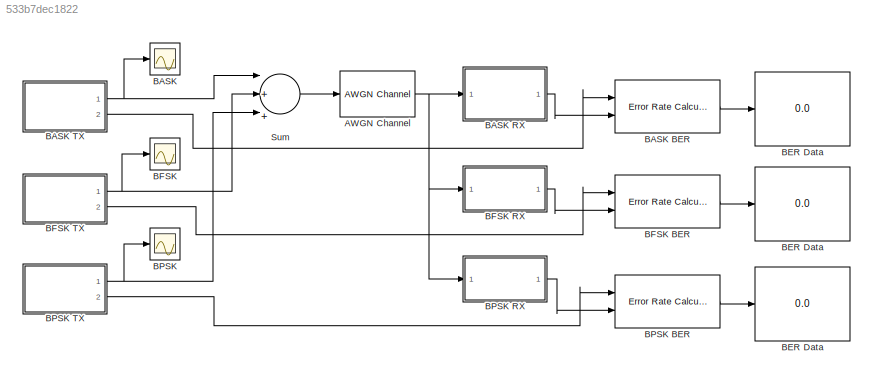
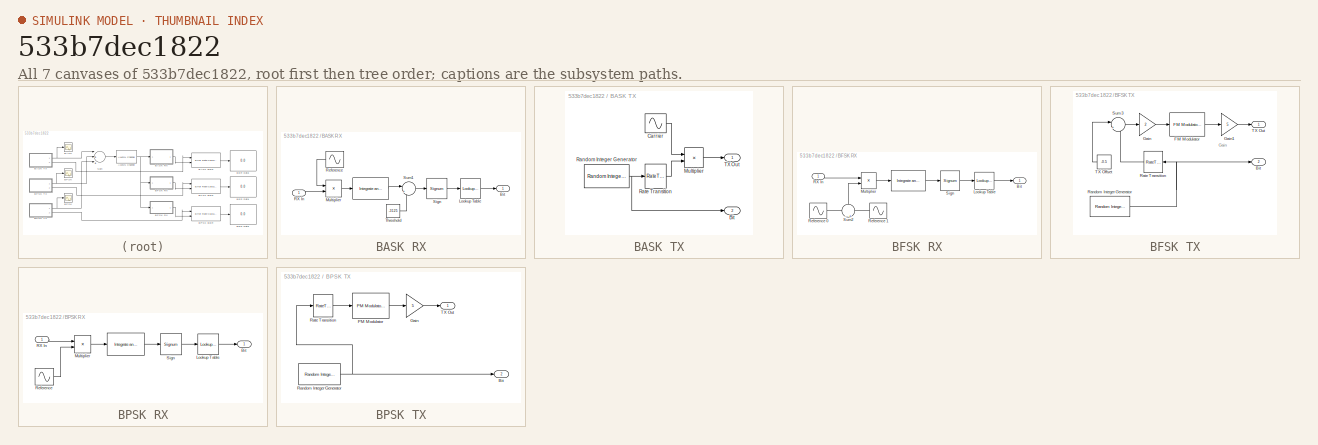
[diagram: thumbnail index - all 7 canvases of the model, root first then tree order]
MODEL slx_533b7dec1822
KIND model
BLOCK [Reference] AWGN Channel  REF=commchan3/AWGN
Channel
  EbNodB = 80
  EsNodB = 10
  InputProcessing = Inherited (this choice will be removed - see release notes)
  Ports = [1, 1]
  Ps = 12.5
  SNRdB = 12
  SourceBlock = commchan3/AWGN\nChannel
  SourceType = AWGN Channel
  Tsym = 1e-3
  UserDataPersistent = on
  bitsPerSym = 1
  noiseMode = Signal to noise ratio  (Eb/No)
  seed = randseed
  variance = 0
BLOCK [Scope] BASK
  DataFormat = StructureWithTime
  Floating = off
  NumInputPorts = 1
  Ports = [1]
  SampleTime = 0
  ShowLegends = off
  YMax = 6
  YMin = -6
BLOCK [Reference] BASK BER  REF=commsink2/Error Rate
Calculation
  N = 2
  PMode = Port
  Ports = [2, 1]
  RsMode2 = off
  SourceBlock = commsink2/Error Rate\nCalculation
  SourceType = Error Rate Calculation
  WsName = ErrorVec
  cp_mode = Entire frame
  maxBits = 1e6
  numErr = 100
  st_delay = 0
  stop = off
  subframe = []
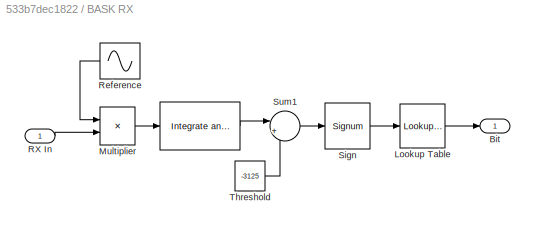
BLOCK [SubSystem] BASK RX
  Ports = [1, 1]
  RequestExecContextInheritance = off
BLOCK [Reference] BASK RX/   REF=commfilt2/Integrate
and Dump
  LockScale = off
  Ports = [1, 1]
  SourceBlock = commfilt2/Integrate\nand Dump
  SourceType = Integrate and Dump
  accumFracLength = 30
  accumMode = Inherit via internal rule
  accumWordLength = 32
  nodump = off
  obssamples = 500
  offsetsamples = 0
  outputFracLength = 30
  outputMode = Same as accumulator
  outputWordLength = 32
  overflowMode = off
  roundingMode = Floor
BLOCK [Outport] BASK RX/Bit
  IconDisplay = Port number
BLOCK [Lookup_n-D] BASK RX/Lookup Table
  BreakpointsForDimension1 = [-1, 0, 1]
  BreakpointsForDimension3 = [5, 7]
  InternalRulePriority = Speed
  NumberOfTableDimensions = 1
  Ports = [1, 1]
  RndMeth = Simplest
  Table = [0, 0, 1]
BLOCK [Product] BASK RX/Multiplier
  InputSameDT = off
  OutDataTypeStr = Inherit: Inherit via internal rule
  Ports = [2, 1]
  SaturateOnIntegerOverflow = off
BLOCK [Inport] BASK RX/RX In
  IconDisplay = Port number
BLOCK [Sin] BASK RX/Reference
  Amplitude = 5
  Frequency = 31000*pi
  Ports = [0, 1]
  SampleTime = 2e-6
  Samples = 200
BLOCK [Signum] BASK RX/Sign
BLOCK [Sum] BASK RX/Sum1
  IconShape = round
  InputSameDT = off
  Inputs = |++
  OutDataTypeStr = Inherit: Inherit via internal rule
  Ports = [2, 1]
  SaturateOnIntegerOverflow = off
BLOCK [Constant] BASK RX/Threshold
  Value = -3125
BLOCK [SubSystem] BASK TX
  Ports = [0, 2]
  RequestExecContextInheritance = off
BLOCK [Outport] BASK TX/Bit
  IconDisplay = Port number
  Port = 2
BLOCK [Sin] BASK TX/Carrier
  Amplitude = 5
  Frequency = 31000*pi
  Ports = [0, 1]
  SampleTime = 2e-6
BLOCK [Product] BASK TX/Multiplier 
  InputSameDT = off
  OutDataTypeStr = Inherit: Inherit via internal rule
  Ports = [2, 1]
  SaturateOnIntegerOverflow = off
BLOCK [Reference] BASK TX/Random Integer Generator  REF=commrandsrc2/Random Integer
Generator
  Ports = [0, 1]
  SourceBlock = commrandsrc2/Random Integer\nGenerator
  SourceType = Random Integer Generator
  Ts = 1e-3
  frameBased = off
  mul = 2
  orient = on
  outDataType = double
  sampPerFrame = 50
  seed = randseed
BLOCK [RateTransition] BASK TX/Rate Transition
  OutPortSampleTime = 2e-6
BLOCK [Outport] BASK TX/TX Out
  IconDisplay = Port number
BLOCK [Display] BER Data
  Decimation = 1
  Format = long
  Ports = [1]
BLOCK [Display] BER Data 
  Decimation = 1
  Format = long
  Ports = [1]
BLOCK [Display] BER Data  
  Decimation = 1
  Format = long
  Ports = [1]
BLOCK [Scope] BFSK
  DataFormat = StructureWithTime
  Floating = off
  NumInputPorts = 1
  Ports = [1]
  SampleTime = 0
  SaveName = ScopeData1
  ShowLegends = off
  TimeRange = 0.005
  YMax = 6
  YMin = -6
BLOCK [Reference] BFSK BER  REF=commsink2/Error Rate
Calculation
  N = 2
  PMode = Port
  Ports = [2, 1]
  RsMode2 = off
  SourceBlock = commsink2/Error Rate\nCalculation
  SourceType = Error Rate Calculation
  WsName = ErrorVec
  cp_mode = Entire frame
  maxBits = 1e6
  numErr = 100
  st_delay = 0
  stop = off
  subframe = []
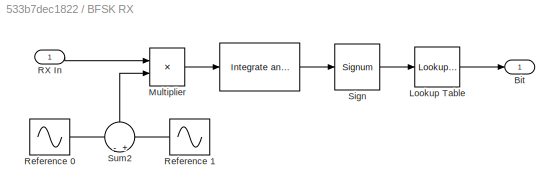
BLOCK [SubSystem] BFSK RX
  Ports = [1, 1]
  RequestExecContextInheritance = off
BLOCK [Reference] BFSK RX/   REF=commfilt2/Integrate
and Dump
  LockScale = off
  Ports = [1, 1]
  SourceBlock = commfilt2/Integrate\nand Dump
  SourceType = Integrate and Dump
  accumFracLength = 30
  accumMode = Inherit via internal rule
  accumWordLength = 32
  nodump = off
  obssamples = 500
  offsetsamples = 0
  outputFracLength = 30
  outputMode = Same as accumulator
  outputWordLength = 32
  overflowMode = off
  roundingMode = Floor
BLOCK [Outport] BFSK RX/Bit
  IconDisplay = Port number
BLOCK [Lookup_n-D] BFSK RX/Lookup Table
  BreakpointsForDimension1 = [-1, 0, 1]
  BreakpointsForDimension3 = [5, 7]
  InternalRulePriority = Speed
  NumberOfTableDimensions = 1
  Ports = [1, 1]
  RndMeth = Simplest
  Table = [0, 0, 1]
BLOCK [Product] BFSK RX/Multiplier
  InputSameDT = off
  OutDataTypeStr = Inherit: Inherit via internal rule
  Ports = [2, 1]
  SaturateOnIntegerOverflow = off
BLOCK [Inport] BFSK RX/RX In
  IconDisplay = Port number
BLOCK [Sin] BFSK RX/Reference 0
  Amplitude = 5
  Frequency = 39000*pi
  Phase = pi/2
  Ports = [0, 1]
  SampleTime = 2e-6
  Samples = 200
BLOCK [Sin] BFSK RX/Reference 1
  Amplitude = 5
  Frequency = 41000*pi
  Phase = pi/2
  Ports = [0, 1]
  SampleTime = 2e-6
  Samples = 200
BLOCK [Signum] BFSK RX/Sign
BLOCK [Sum] BFSK RX/Sum2
  IconShape = round
  InputSameDT = off
  Inputs = -+
  OutDataTypeStr = Inherit: Inherit via internal rule
  Ports = [2, 1]
  SaturateOnIntegerOverflow = off
BLOCK [SubSystem] BFSK TX
  Ports = [0, 2]
  RequestExecContextInheritance = off
BLOCK [Outport] BFSK TX/Bit
  IconDisplay = Port number
  Port = 2
BLOCK [Reference] BFSK TX/FM Modulator  REF=commanapbnd3/FM
Modulator
Passband
  Fc = 20000
  Kc = 500
  Ph = 0
  Ports = [1, 1]
  SourceBlock = commanapbnd3/FM\nModulator\nPassband
  SourceType = FM Modulator Passband
BLOCK [Gain] BFSK TX/Gain
  Gain = 2
  OutDataTypeStr = Inherit: Inherit via internal rule
  ParamDataTypeStr = Inherit: Inherit via internal rule
  SaturateOnIntegerOverflow = off
BLOCK [Gain] BFSK TX/Gain1
  Gain = 5
  OutDataTypeStr = Inherit: Inherit via internal rule
  ParamDataTypeStr = Inherit: Inherit via internal rule
  SaturateOnIntegerOverflow = off
BLOCK [Reference] BFSK TX/Random Integer Generator  REF=commrandsrc2/Random Integer
Generator
  Ports = [0, 1]
  SourceBlock = commrandsrc2/Random Integer\nGenerator
  SourceType = Random Integer Generator
  Ts = 1e-3
  frameBased = off
  mul = 2
  orient = on
  outDataType = double
  sampPerFrame = 50
  seed = 46
BLOCK [RateTransition] BFSK TX/Rate Transition
  OutPortSampleTime = 2e-6
BLOCK [Sum] BFSK TX/Sum3
  IconShape = round
  InputSameDT = off
  Inputs = |++
  OutDataTypeStr = Inherit: Inherit via internal rule
  Ports = [2, 1]
  SaturateOnIntegerOverflow = off
BLOCK [Constant] BFSK TX/TX Offset
  Value = -0.5
BLOCK [Outport] BFSK TX/TX Out
  IconDisplay = Port number
BLOCK [Scope] BPSK
  DataFormat = StructureWithTime
  Floating = off
  NumInputPorts = 1
  Ports = [1]
  SampleTime = 0
  SaveName = ScopeData2
  ShowLegends = off
  YMax = 6
  YMin = -6
BLOCK [Reference] BPSK BER  REF=commsink2/Error Rate
Calculation
  N = 2
  PMode = Port
  Ports = [2, 1]
  RsMode2 = off
  SourceBlock = commsink2/Error Rate\nCalculation
  SourceType = Error Rate Calculation
  WsName = ErrorVec
  cp_mode = Entire frame
  maxBits = 1e6
  numErr = 100
  st_delay = 0
  stop = off
  subframe = []
BLOCK [SubSystem] BPSK RX
  Ports = [1, 1]
  RequestExecContextInheritance = off
BLOCK [Reference] BPSK RX/   REF=commfilt2/Integrate
and Dump
  LockScale = off
  Ports = [1, 1]
  SourceBlock = commfilt2/Integrate\nand Dump
  SourceType = Integrate and Dump
  accumFracLength = 30
  accumMode = Inherit via internal rule
  accumWordLength = 32
  nodump = off
  obssamples = 500
  offsetsamples = 0
  outputFracLength = 30
  outputMode = Same as accumulator
  outputWordLength = 32
  overflowMode = off
  roundingMode = Floor
BLOCK [Lookup_n-D] BPSK RX/ Lookup Table
  BreakpointsForDimension1 = [-1, 0, 1]
  BreakpointsForDimension3 = [5, 7]
  InternalRulePriority = Speed
  NumberOfTableDimensions = 1
  Ports = [1, 1]
  RndMeth = Simplest
  Table = [0, 0, 1]
BLOCK [Outport] BPSK RX/Bit
  IconDisplay = Port number
BLOCK [Product] BPSK RX/Multiplier
  InputSameDT = off
  OutDataTypeStr = Inherit: Inherit via internal rule
  Ports = [2, 1]
  SaturateOnIntegerOverflow = off
BLOCK [Inport] BPSK RX/RX In
  IconDisplay = Port number
BLOCK [Sin] BPSK RX/Reference
  Amplitude = 5
  Frequency = 49000*pi
  Phase = pi/2
  Ports = [0, 1]
  SampleTime = 2e-6
  Samples = 200
BLOCK [Signum] BPSK RX/Sign
BLOCK [SubSystem] BPSK TX
  Ports = [0, 2]
  RequestExecContextInheritance = off
BLOCK [Outport] BPSK TX/Bit 
  IconDisplay = Port number
  Port = 2
BLOCK [Gain] BPSK TX/Gain
  Gain = 5
  OutDataTypeStr = Inherit: Inherit via internal rule
  ParamDataTypeStr = Inherit: Inherit via internal rule
  SaturateOnIntegerOverflow = off
BLOCK [Reference] BPSK TX/PM Modulator  REF=commanapbnd3/PM
Modulator
Passband
  Fc = 24500
  Kc = pi
  Ph = pi
  Ports = [1, 1]
  SourceBlock = commanapbnd3/PM\nModulator\nPassband
  SourceType = PM Modulator Passband
BLOCK [Reference] BPSK TX/Random Integer Generator  REF=commrandsrc2/Random Integer
Generator
  Ports = [0, 1]
  SourceBlock = commrandsrc2/Random Integer\nGenerator
  SourceType = Random Integer Generator
  Ts = 1e-3
  frameBased = off
  mul = 2
  orient = on
  outDataType = double
  sampPerFrame = 50
  seed = randseed
BLOCK [RateTransition] BPSK TX/Rate Transition
  OutPortSampleTime = 2e-6
BLOCK [Outport] BPSK TX/TX Out
  IconDisplay = Port number
BLOCK [Sum] Sum
  InputSameDT = off
  Inputs = |+|+|+|
  OutDataTypeStr = Inherit: Inherit via internal rule
  Ports = [3, 1]
  SaturateOnIntegerOverflow = off
ANNOTATION BFSK TX: Gain
NET AWGN Channel:1 -> BASK RX:1, BFSK RX:1, BPSK RX:1
LINE BASK BER:1 -> BER Data:1
LINE BASK RX/ :1 -> BASK RX/Sum1:1
LINE BASK RX/Lookup Table:1 -> BASK RX/Bit:1
LINE BASK RX/Multiplier:1 -> BASK RX/ :1
LINE BASK RX/RX In:1 -> BASK RX/Multiplier:2
LINE BASK RX/Reference:1 -> BASK RX/Multiplier:1
LINE BASK RX/Sign:1 -> BASK RX/Lookup Table:1
LINE BASK RX/Sum1:1 -> BASK RX/Sign:1
LINE BASK RX/Threshold:1 -> BASK RX/Sum1:2
LINE BASK RX:1 -> BASK BER:2
LINE BASK TX/Carrier:1 -> BASK TX/Multiplier :1
LINE BASK TX/Multiplier :1 -> BASK TX/TX Out:1
NET BASK TX/Random Integer Generator:1 -> BASK TX/Bit:1, BASK TX/Rate Transition:1
LINE BASK TX/Rate Transition:1 -> BASK TX/Multiplier :2
NET BASK TX:1 -> BASK:1, Sum:1
LINE BASK TX:2 -> BASK BER:1
LINE BFSK BER:1 -> BER Data :1
LINE BFSK RX/ :1 -> BFSK RX/Sign:1
LINE BFSK RX/Lookup Table:1 -> BFSK RX/Bit:1
LINE BFSK RX/Multiplier:1 -> BFSK RX/ :1
LINE BFSK RX/RX In:1 -> BFSK RX/Multiplier:1
LINE BFSK RX/Reference 0:1 -> BFSK RX/Sum2:1
LINE BFSK RX/Reference 1:1 -> BFSK RX/Sum2:2
LINE BFSK RX/Sign:1 -> BFSK RX/Lookup Table:1
LINE BFSK RX/Sum2:1 -> BFSK RX/Multiplier:2
LINE BFSK RX:1 -> BFSK BER:2
LINE BFSK TX/FM Modulator:1 -> BFSK TX/Gain1:1
LINE BFSK TX/Gain1:1 -> BFSK TX/TX Out:1
LINE BFSK TX/Gain:1 -> BFSK TX/FM Modulator:1
NET BFSK TX/Random Integer Generator:1 -> BFSK TX/Bit:1, BFSK TX/Rate Transition:1
LINE BFSK TX/Rate Transition:1 -> BFSK TX/Sum3:2
LINE BFSK TX/Sum3:1 -> BFSK TX/Gain:1
LINE BFSK TX/TX Offset:1 -> BFSK TX/Sum3:1
NET BFSK TX:1 -> BFSK:1, Sum:2
LINE BFSK TX:2 -> BFSK BER:1
LINE BPSK BER:1 -> BER Data  :1
LINE BPSK RX/ :1 -> BPSK RX/Sign:1
LINE BPSK RX/ Lookup Table:1 -> BPSK RX/Bit:1
LINE BPSK RX/Multiplier:1 -> BPSK RX/ :1
LINE BPSK RX/RX In:1 -> BPSK RX/Multiplier:1
LINE BPSK RX/Reference:1 -> BPSK RX/Multiplier:2
LINE BPSK RX/Sign:1 -> BPSK RX/ Lookup Table:1
LINE BPSK RX:1 -> BPSK BER:2
LINE BPSK TX/Gain:1 -> BPSK TX/TX Out:1
LINE BPSK TX/PM Modulator:1 -> BPSK TX/Gain:1
NET BPSK TX/Random Integer Generator:1 -> BPSK TX/Bit :1, BPSK TX/Rate Transition:1
LINE BPSK TX/Rate Transition:1 -> BPSK TX/PM Modulator:1
NET BPSK TX:1 -> BPSK:1, Sum:3
LINE BPSK TX:2 -> BPSK BER:1
LINE Sum:1 -> AWGN Channel:1
note: NET lines group one-source signal fan-out (src -> all destinations, sorted); 1:1 wires keep LINE
